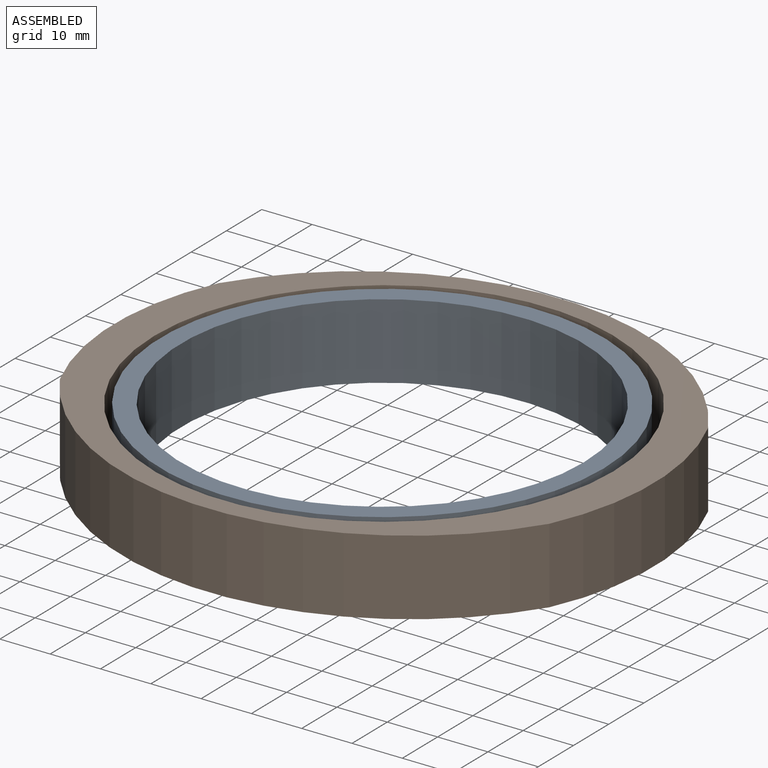
[diagram: assembled view]
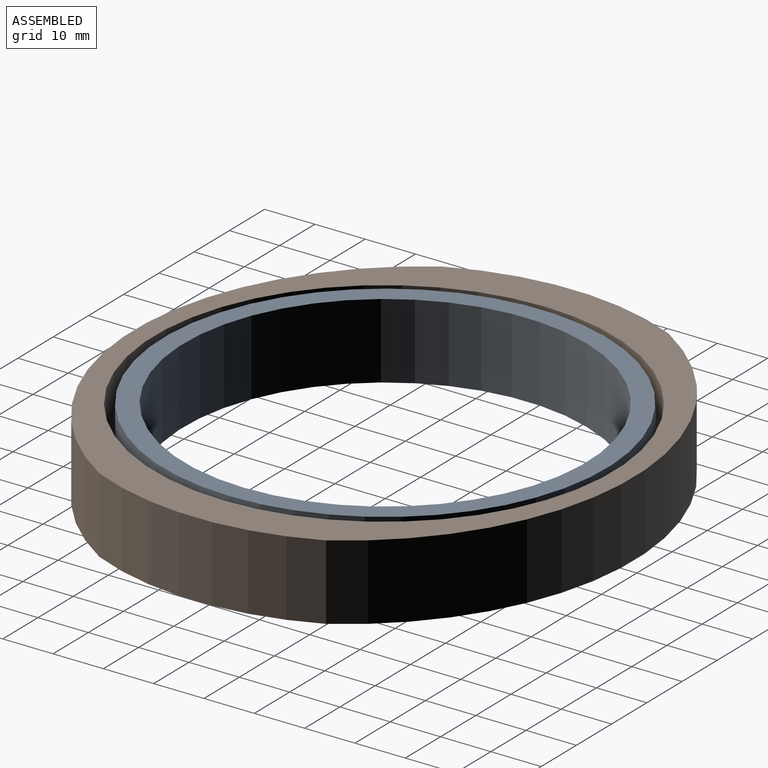
[diagram: assembled view, second angle]
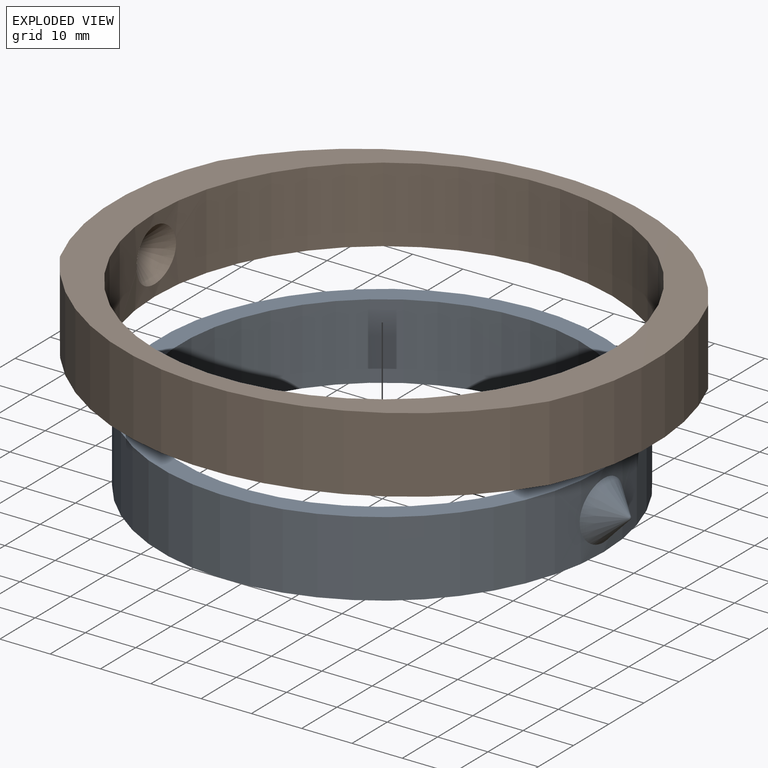
[diagram: exploded view]
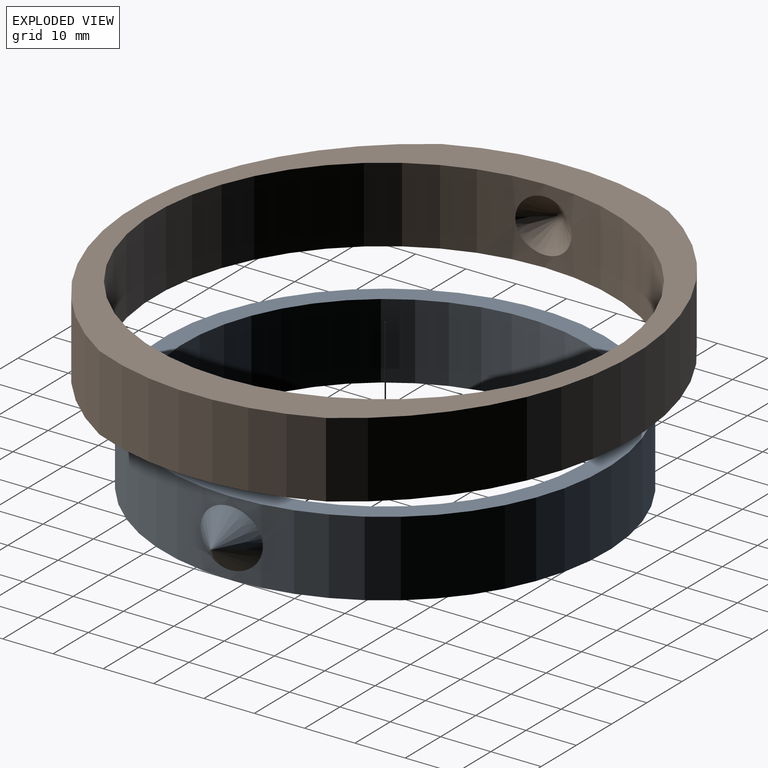
[diagram: exploded view, second angle]
ASSEMBLY  parts=2 mates=2
PART A: 8 faces, bbox 98.7x88x15 mm
  f0: cylinder r=44mm len=88mm, axis (0,0,-1), area 3922.8mm2, adj f2,f3,f4,f6
  f1: cylinder r=40mm len=80mm, axis (0,0,-1), area 3769.9mm2, adj f2,f3
  f2: plane 88x88mm, normal (0,0,1), area 1055.6mm2, adj f0,f1
  f3: plane 88x88mm, normal (0,0,-1), area 1055.6mm2, adj f0,f1
  f4: cone r=6.78mm half-angle=46deg, axis (1,0,0), area 154.7mm2, adj f0,f5
  f5: sphere r=0.5mm, area 0.4mm2, adj f4
  f6: cone r=6.78mm half-angle=46deg, axis (-1,0,0), area 154.7mm2, adj f0,f7
  f7: sphere r=0.5mm, area 0.4mm2, adj f6
PART B: 11 faces, bbox 107.2x99.2x15 mm
  f0: cylinder r=53.6mm len=45.04mm, axis (0,0,-1), area 697.3mm2, adj f1,f4,f9,f10
  f1: plane 107.2x99.2mm, normal (0,0,1), area 1871.1mm2, adj f0,f2,f3,f9,f10
  f2: cylinder r=45.6mm len=91.2mm, axis (0,0,-1), area 4113.3mm2, adj f1,f4,f5,f7
  f3: cylinder r=53.6mm len=45.04mm, axis (0,0,-1), area 697.3mm2, adj f1,f4,f9,f10
  f4: plane 107.2x99.2mm, normal (0,0,-1), area 1871.1mm2, adj f0,f2,f3,f9,f10
  f5: cone r=7.34mm half-angle=46deg, axis (-1,0,0), area 124.5mm2, adj f2,f6
  f6: torus R=0.01mm, axis (1,0,0), area 3mm2, adj f5
  f7: cone r=7.34mm half-angle=46deg, axis (1,0,0), area 124.5mm2, adj f2,f8
  f8: torus R=0.01mm, axis (-1,0,0), area 3mm2, adj f7
  f9: cylinder r=57.22mm len=97.28mm, axis (0,0,-1), area 1744.1mm2, adj f0,f1,f3,f4
  f10: cylinder r=57.22mm len=97.28mm, axis (0,0,-1), area 1744.1mm2, adj f0,f1,f3,f4
PLACE A at identity fixed
PLACE B rot(axis=(1,0,0),180deg) t=(0.34,0,15.01)mm
MATE parallel B.f2 <-> A.f0  axis (0,0,1) through (0.34,0,15.01)mm
MATE cylindrical A.f4 <-> B.f7  axis (1,0,0) through (-46.37,0,7.5)mm
